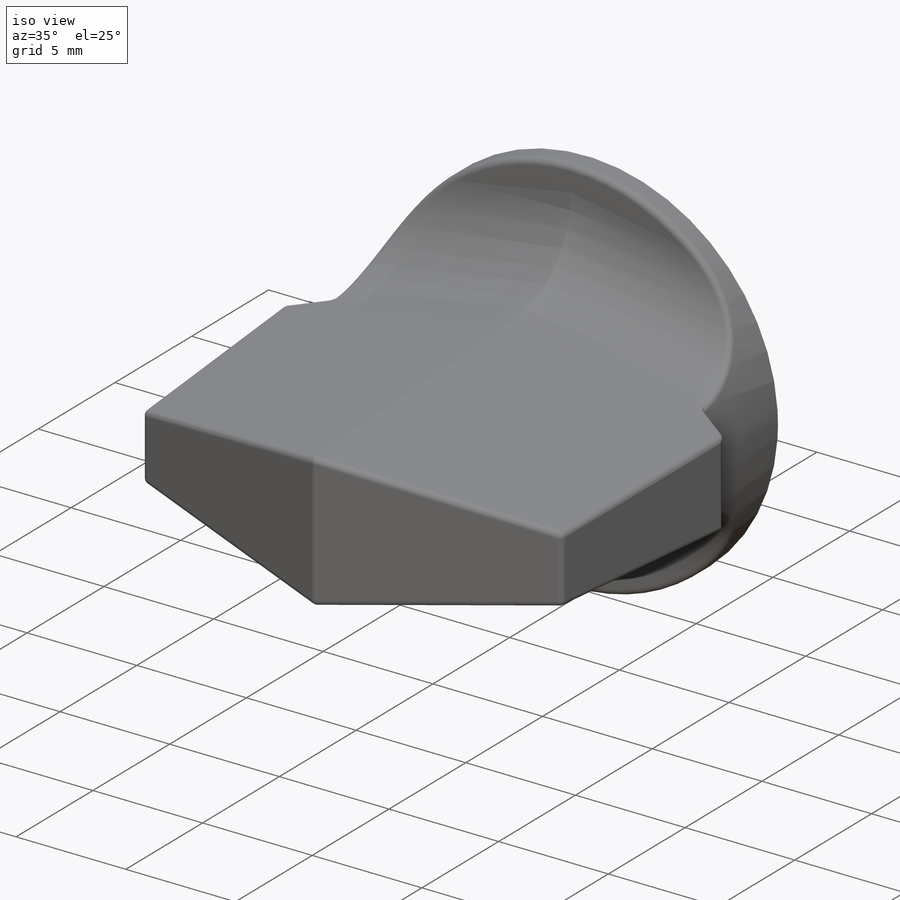
[diagram: iso view]
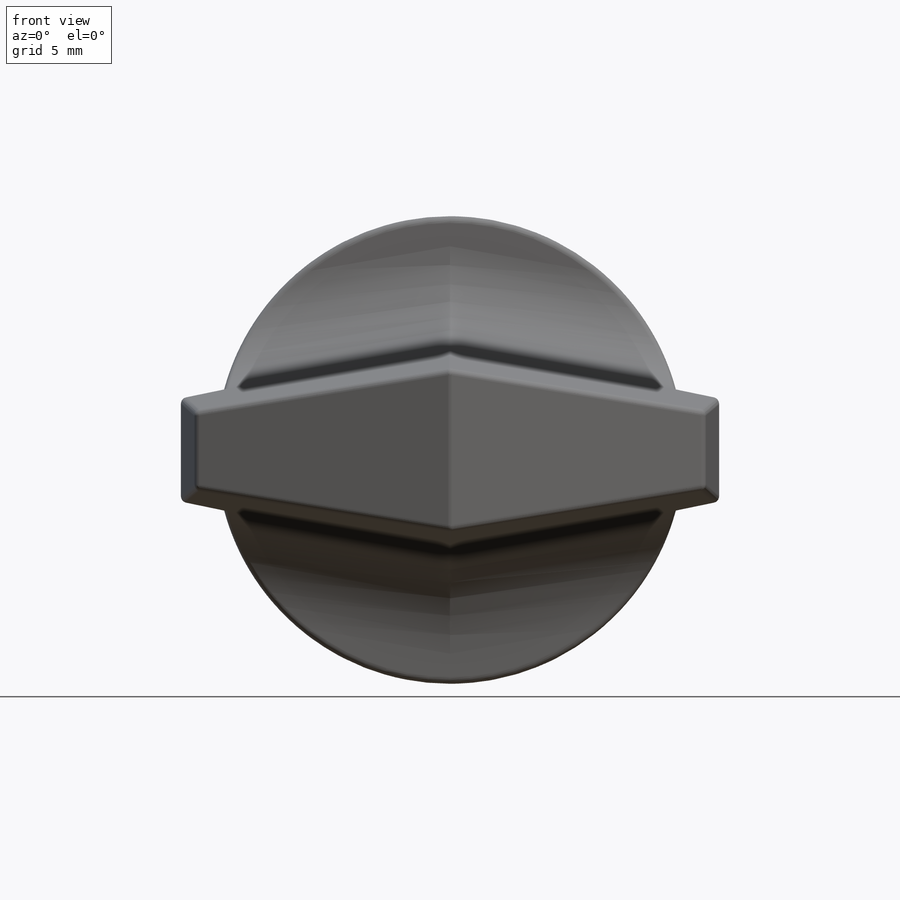
[diagram: front view]
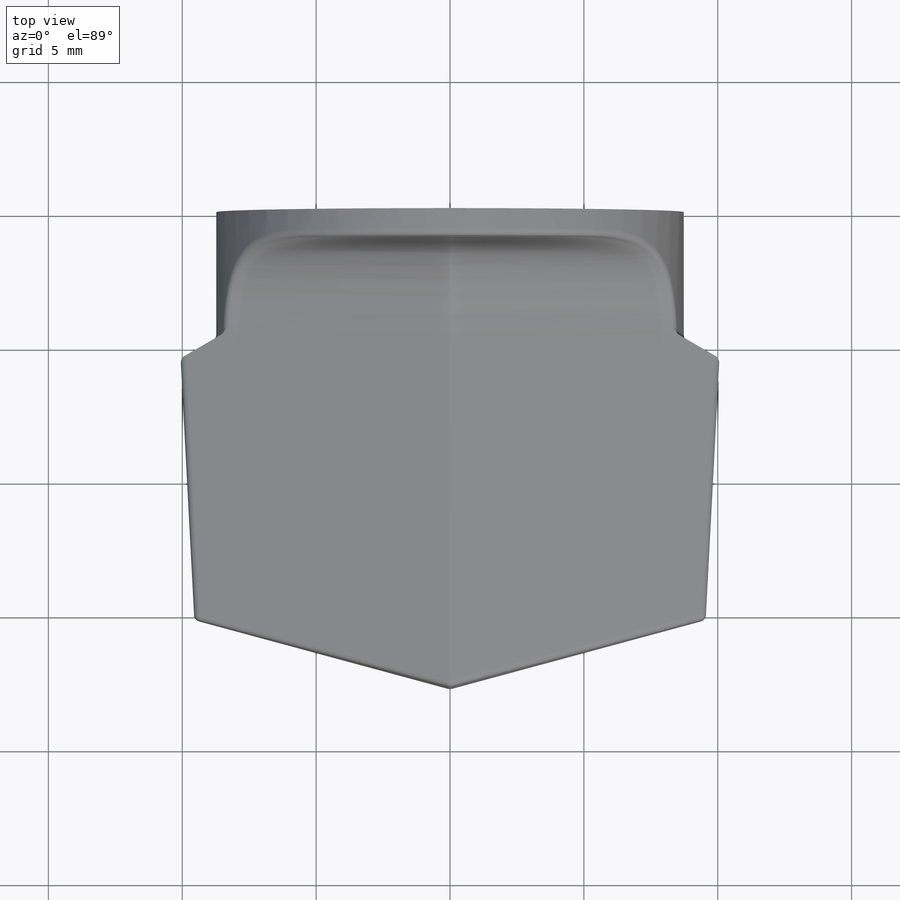
[diagram: top view]
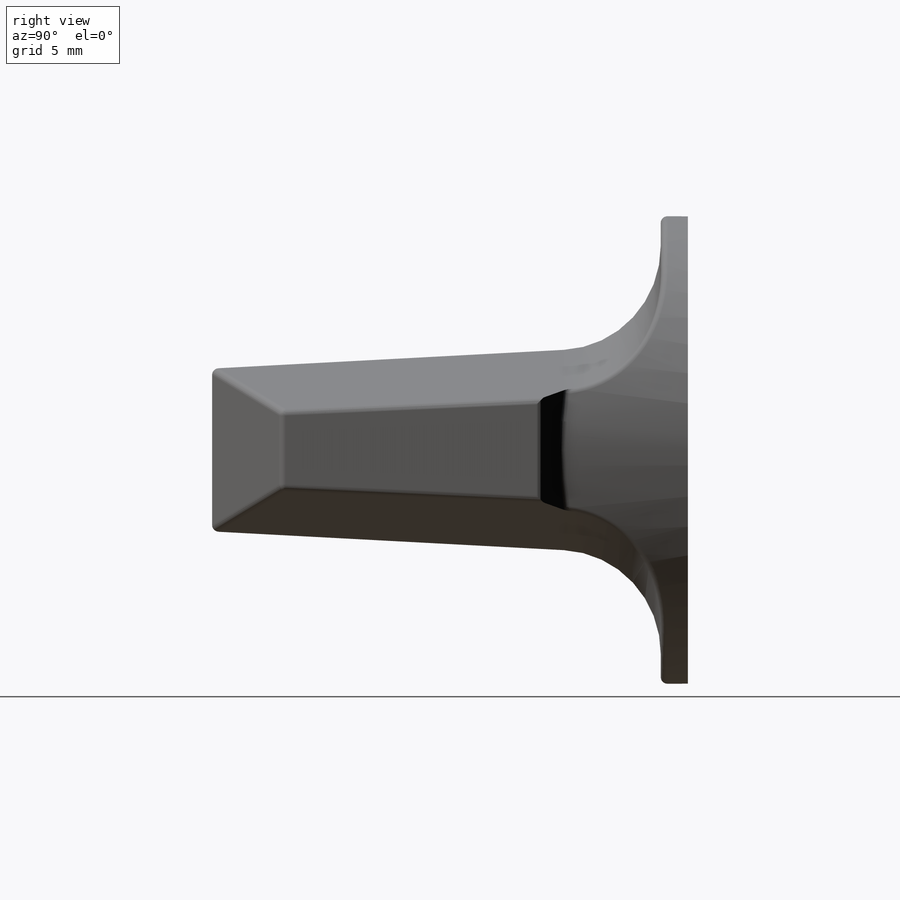
[diagram: right view]
SOLIDWORKS PART (.sldprt)
format: sldprt  version: not decoded by parser v0  size: 380,928 bytes
history: native  units: mm
features: sketch x6, fillet x5, cut_extrude x4, extrude x2, material x1 (+16 scaffold rows collapsed)
feature tree (34):
  scaffold x16  (default folders/planes/origin — collapsed)
  material  "Zinc AC41A Alloy, As Cast"
  sketch  "Sketch1"  dims[D1=17.4625mm]
  extrude  "Extrude1"  Depth=1.016mm
  sketch  "Sketch2"  dims[c1.D1=~10.29335mm c1.D2=~10.29335mm c1.D4=~11.767909mm c2.D4=10.0deg c3.D4=~2.122005mm c4.D4=100.0deg c4.D2=3.937mm c4.D3=3.937mm]
  extrude  "Extrude2"  Depth=16.764mm
  sketch  "Sketch4"  dims[c1.D1=~10.29335mm c2.D1=15.0deg]
  cut_extrude  "Extrude3"  [1 undecoded]
  fillet  "Fillet3"  Radius=3.81mm
  sketch  "Sketch5"  dims[c1.D1=~1.59522mm c2.D1=150.0deg]
  cut_extrude  "Extrude4"  [1 undecoded]
  sketch  "Sketch6"  dims[D1=0.0mm]
  cut_extrude  "Extrude5"  [1 undecoded]
  sketch  "Sketch7"  dims[D1=0.0mm]
  cut_extrude  "Extrude6"  [1 undecoded]
  fillet  "Fillet4"  Radius=0.254mm
  fillet  "Fillet5"  Radius=0.254mm
  fillet  "Fillet6"  Radius=0.254mm
  fillet  "Fillet7"  Radius=0.254mm
decode coverage: 13 of 17 modeling features carry decoded parameters
note: ~ marks probable driven/reference dimensions
note: 4 parameter values undecoded
summary: no parameter record found for 4 features
note: suppression state not decoded; provenance and decode notes live in map.json
